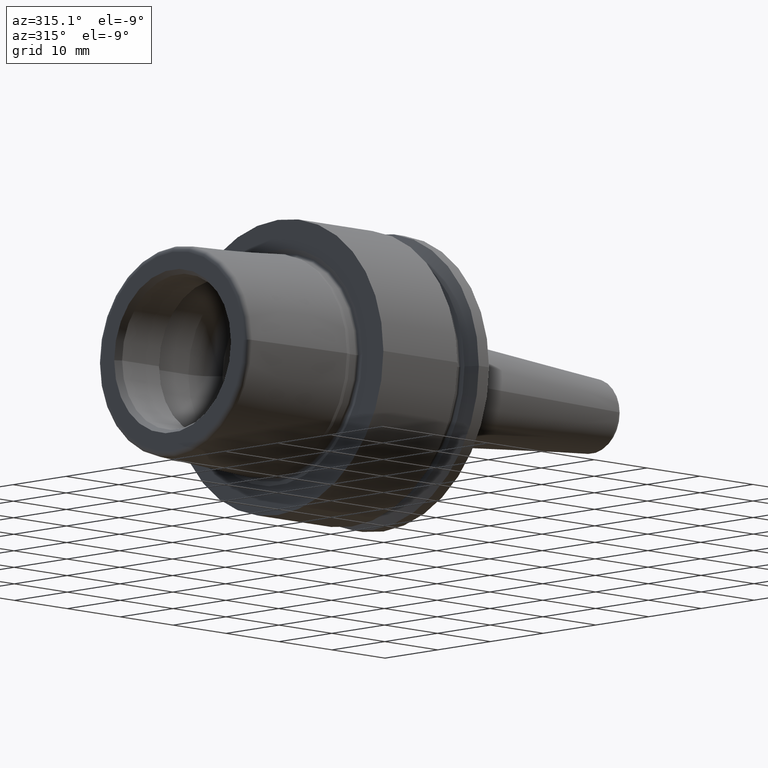
[diagram: clean part render]
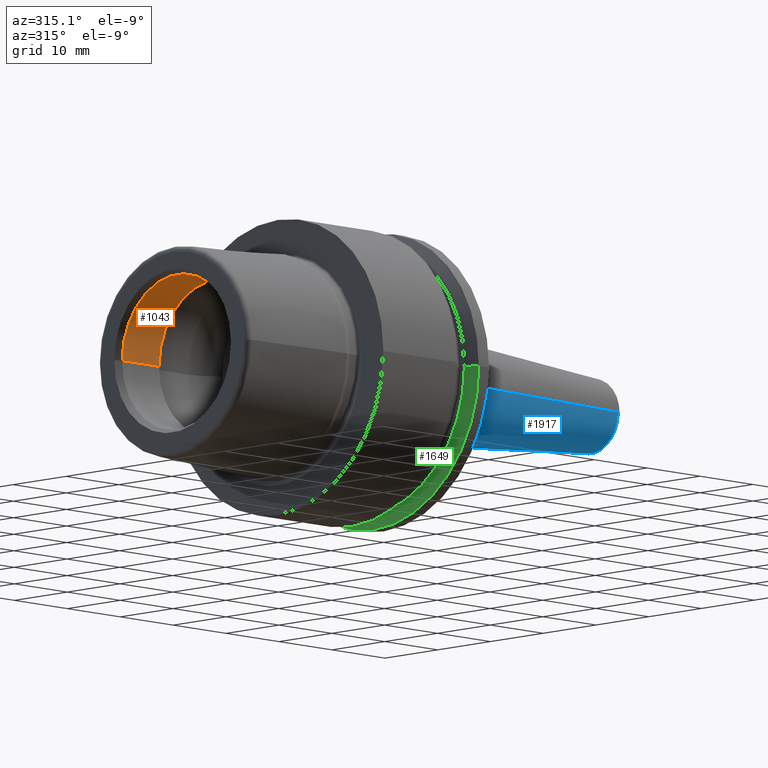
[diagram: same view with three faces highlighted in distinct colors, each labeled with its STEP entity id]
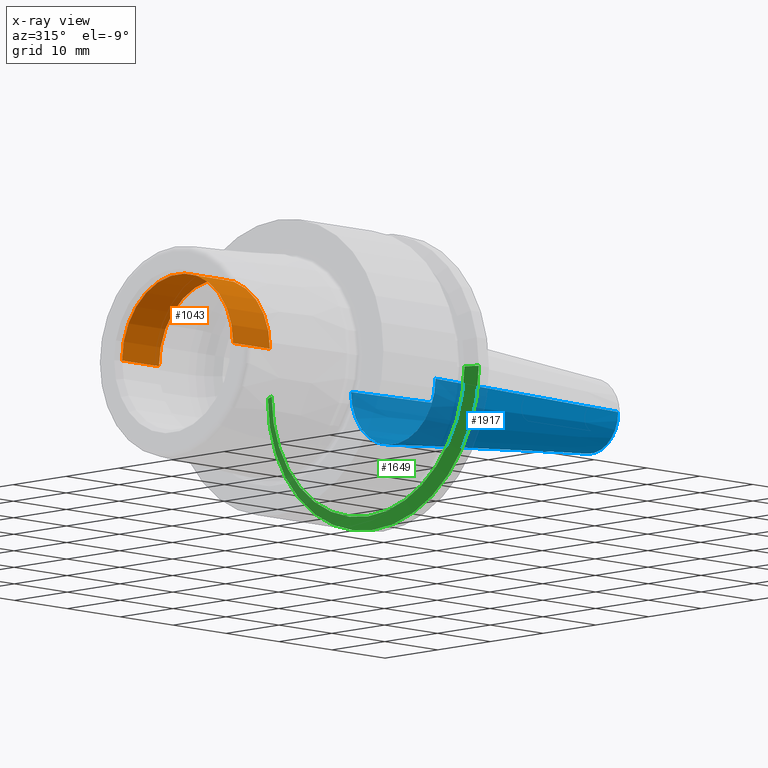
[diagram: x-ray of the same camera — body ghosted, the three highlighted faces saturated]
A machine part, auxiliary view with three faces highlighted in distinct colors.
The next image is the same camera in x-ray (body ghosted, the three faces saturated) — at least one of them is partly hidden behind the body in this view.
Their STEP definitions:

[orange] entity #1043 — the highlighted cylindrical surface (partial cylindrical patch) has radius 10.521 mm, axis along (1, 0, 0).
#78=CARTESIAN_POINT('',(-1.895E1,0.E0,0.E0));
#79=DIRECTION('',(1.E0,0.E0,0.E0));
#80=DIRECTION('',(0.E0,1.E0,0.E0));
#81=AXIS2_PLACEMENT_3D('',#78,#79,#80);
#96=DIRECTION('',(-1.E0,0.E0,0.E0));
#97=VECTOR('',#96,6.964774086463E0);
#98=CARTESIAN_POINT('',(-1.198522591354E1,1.0521E1,0.E0));
#99=LINE('',#98,#97);
#105=DIRECTION('',(-1.E0,0.E0,0.E0));
#106=VECTOR('',#105,6.964774086463E0);
#107=CARTESIAN_POINT('',(-1.198522591354E1,-1.0521E1,0.E0));
#108=LINE('',#107,#106);
#109=CARTESIAN_POINT('',(-1.198522591354E1,0.E0,0.E0));
#110=DIRECTION('',(1.E0,0.E0,0.E0));
#111=DIRECTION('',(0.E0,1.E0,0.E0));
#112=AXIS2_PLACEMENT_3D('',#109,#110,#111);
#806=CARTESIAN_POINT('',(-1.198522591354E1,1.0521E1,0.E0));
#807=VERTEX_POINT('',#806);
#808=CARTESIAN_POINT('',(-1.895E1,1.0521E1,0.E0));
#809=VERTEX_POINT('',#808);
#818=CARTESIAN_POINT('',(-1.198522591354E1,-1.0521E1,0.E0));
#819=VERTEX_POINT('',#818);
#820=CARTESIAN_POINT('',(-1.895E1,-1.0521E1,0.E0));
#821=VERTEX_POINT('',#820);
#1031=CARTESIAN_POINT('',(-2.12925E1,0.E0,0.E0));
#1032=DIRECTION('',(1.E0,0.E0,0.E0));
#1033=DIRECTION('',(0.E0,-1.E0,0.E0));
#1034=AXIS2_PLACEMENT_3D('',#1031,#1032,#1033);
#1035=CYLINDRICAL_SURFACE('',#1034,1.0521E1);
#1036=ORIENTED_EDGE('',*,*,#1021,.T.);
#1037=ORIENTED_EDGE('',*,*,#998,.T.);
#1038=ORIENTED_EDGE('',*,*,#1025,.F.);
#1040=ORIENTED_EDGE('',*,*,#1039,.F.);
#1041=EDGE_LOOP('',(#1036,#1037,#1038,#1040));
#1042=FACE_OUTER_BOUND('',#1041,.F.);
#1043=ADVANCED_FACE('',(#1042),#1035,.F.);
#82=CIRCLE('',#81,1.0521E1);
#113=CIRCLE('',#112,1.0521E1);
#998=EDGE_CURVE('',#809,#821,#82,.T.);
#1021=EDGE_CURVE('',#807,#809,#99,.T.);
#1025=EDGE_CURVE('',#819,#821,#108,.T.);
#1039=EDGE_CURVE('',#807,#819,#113,.T.);

[blue] entity #1917 — the highlighted conical surface has half-angle 4.5 deg.
#662=CARTESIAN_POINT('',(5.926276727658E1,0.E0,0.E0));
#663=DIRECTION('',(-1.E0,0.E0,0.E0));
#664=DIRECTION('',(0.E0,1.E0,0.E0));
#665=AXIS2_PLACEMENT_3D('',#662,#663,#664);
#667=DIRECTION('',(-9.969173337331E-1,7.845909572785E-2,1.494067825609E-13));
#668=VECTOR('',#667,3.758554917259E1);
#669=CARTESIAN_POINT('',(5.926276727658E1,5.058021473660E0,
-4.043889288971E-12));
#670=LINE('',#669,#668);
#671=CARTESIAN_POINT('',(2.179308180854E1,0.E0,0.E0));
#672=DIRECTION('',(1.E0,0.E0,0.E0));
#673=DIRECTION('',(0.E0,-1.E0,0.E0));
#674=AXIS2_PLACEMENT_3D('',#671,#672,#673);
#676=DIRECTION('',(-9.969173337331E-1,-7.845909572785E-2,-1.494578835525E-13));
#677=VECTOR('',#676,3.758554917259E1);
#678=CARTESIAN_POINT('',(5.926276727658E1,-5.058021473660E0,
4.043732937679E-12));
#679=LINE('',#678,#677);
#866=CARTESIAN_POINT('',(2.179308180854E1,-8.006949674176E0,0.E0));
#867=CARTESIAN_POINT('',(2.179308180854E1,8.006949674176E0,0.E0));
#868=VERTEX_POINT('',#866);
#869=VERTEX_POINT('',#867);
#870=CARTESIAN_POINT('',(5.926276727658E1,5.058021473660E0,0.E0));
#871=CARTESIAN_POINT('',(5.926276727658E1,-5.058021473660E0,0.E0));
#872=VERTEX_POINT('',#870);
#873=VERTEX_POINT('',#871);
#1906=CARTESIAN_POINT('',(4.052792454256E1,0.E0,0.E0));
#1907=DIRECTION('',(-1.E0,0.E0,0.E0));
#1908=DIRECTION('',(0.E0,1.E0,0.E0));
#1909=AXIS2_PLACEMENT_3D('',#1906,#1907,#1908);
#1910=CONICAL_SURFACE('',#1909,6.532485573918E0,4.5E0);
#1911=ORIENTED_EDGE('',*,*,#1897,.F.);
#1912=ORIENTED_EDGE('',*,*,#1872,.T.);
#1913=ORIENTED_EDGE('',*,*,#1842,.F.);
#1914=ORIENTED_EDGE('',*,*,#1869,.F.);
#1915=EDGE_LOOP('',(#1911,#1912,#1913,#1914));
#1916=FACE_OUTER_BOUND('',#1915,.F.);
#1917=ADVANCED_FACE('',(#1916),#1910,.T.);
#666=CIRCLE('',#665,5.058021473660E0);
#675=CIRCLE('',#674,8.006949674176E0);
#1842=EDGE_CURVE('',#868,#869,#675,.T.);
#1869=EDGE_CURVE('',#873,#868,#679,.T.);
#1872=EDGE_CURVE('',#872,#869,#670,.T.);
#1897=EDGE_CURVE('',#872,#873,#666,.T.);

[green] entity #1649 — the highlighted conical surface has half-angle 60 deg.
#492=DIRECTION('',(5.E-1,8.660254037844E-1,0.E0));
#493=VECTOR('',#492,1.995319397787E0);
#494=CARTESIAN_POINT('',(1.70375E1,1.827200271285E1,0.E0));
#495=LINE('',#494,#493);
#496=CARTESIAN_POINT('',(1.70375E1,0.E0,0.E0));
#497=DIRECTION('',(-1.E0,0.E0,0.E0));
#498=DIRECTION('',(0.E0,1.E0,0.E0));
#499=AXIS2_PLACEMENT_3D('',#496,#497,#498);
#501=DIRECTION('',(5.E-1,-8.660254037844E-1,0.E0));
#502=VECTOR('',#501,1.995319397787E0);
#503=CARTESIAN_POINT('',(1.70375E1,-1.827200271285E1,0.E0));
#504=LINE('',#503,#502);
#591=CARTESIAN_POINT('',(1.803515969889E1,0.E0,0.E0));
#592=DIRECTION('',(1.E0,0.E0,0.E0));
#593=DIRECTION('',(0.E0,-1.E0,0.E0));
#594=AXIS2_PLACEMENT_3D('',#591,#592,#593);
#778=CARTESIAN_POINT('',(1.70375E1,1.827200271285E1,0.E0));
#779=CARTESIAN_POINT('',(1.70375E1,-1.827200271285E1,0.E0));
#780=VERTEX_POINT('',#778);
#781=VERTEX_POINT('',#779);
#782=CARTESIAN_POINT('',(1.803515969889E1,2.E1,0.E0));
#783=VERTEX_POINT('',#782);
#786=CARTESIAN_POINT('',(1.803515969889E1,-2.E1,0.E0));
#787=VERTEX_POINT('',#786);
#1636=CARTESIAN_POINT('',(1.753632984945E1,0.E0,0.E0));
#1637=DIRECTION('',(1.E0,0.E0,0.E0));
#1638=DIRECTION('',(0.E0,-1.E0,0.E0));
#1639=AXIS2_PLACEMENT_3D('',#1636,#1637,#1638);
#1640=CONICAL_SURFACE('',#1639,1.913600135643E1,6.E1);
#1641=ORIENTED_EDGE('',*,*,#1626,.F.);
#1643=ORIENTED_EDGE('',*,*,#1642,.T.);
#1644=ORIENTED_EDGE('',*,*,#1629,.T.);
#1646=ORIENTED_EDGE('',*,*,#1645,.T.);
#1647=EDGE_LOOP('',(#1641,#1643,#1644,#1646));
#1648=FACE_OUTER_BOUND('',#1647,.F.);
#1649=ADVANCED_FACE('',(#1648),#1640,.T.);
#500=CIRCLE('',#499,1.827200271285E1);
#595=CIRCLE('',#594,2.E1);
#1626=EDGE_CURVE('',#780,#783,#495,.T.);
#1629=EDGE_CURVE('',#781,#787,#504,.T.);
#1642=EDGE_CURVE('',#780,#781,#500,.T.);
#1645=EDGE_CURVE('',#787,#783,#595,.T.);